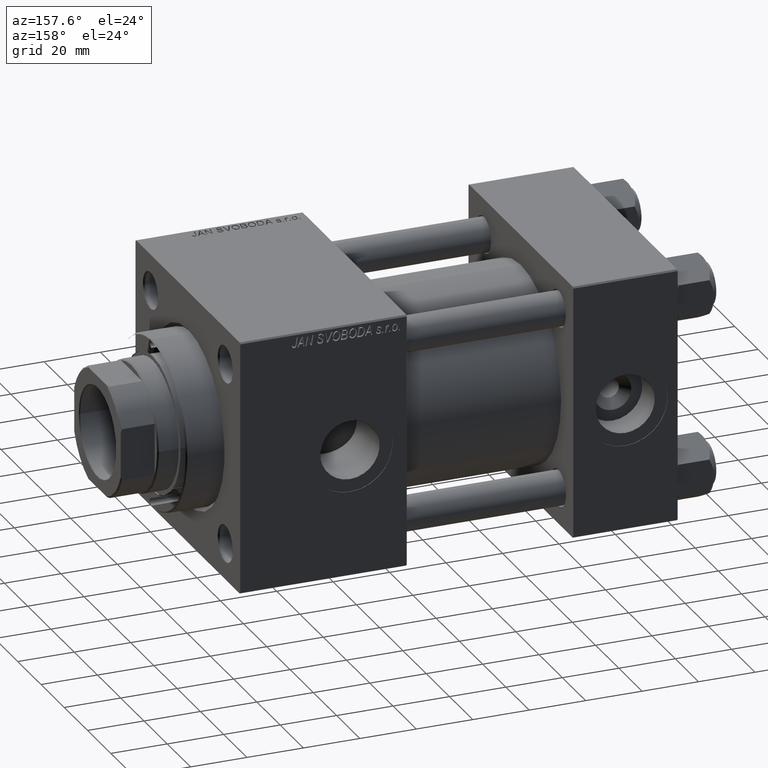
[diagram: clean part render]
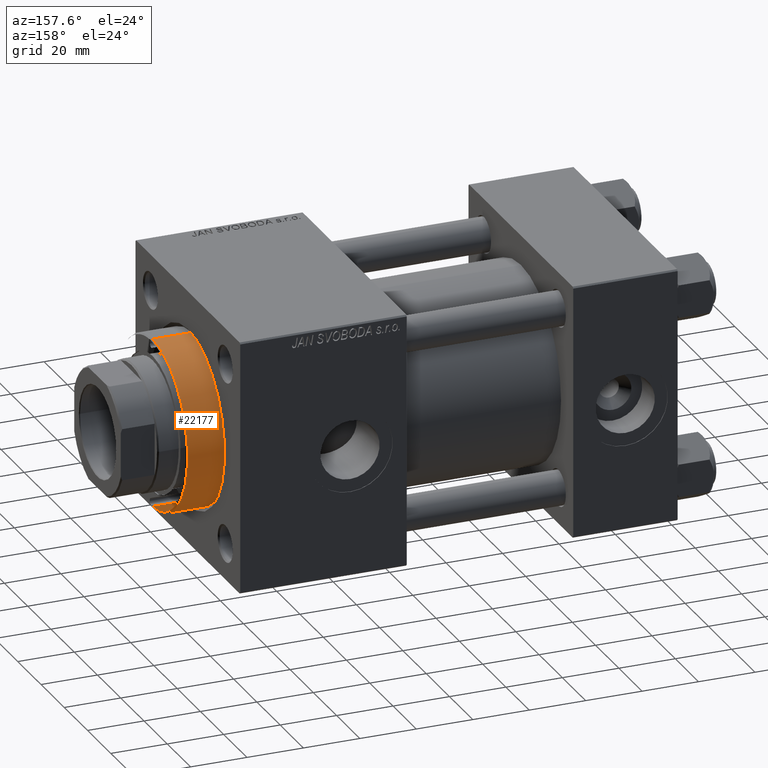
[diagram: same view with one face highlighted and labeled with its STEP entity id]
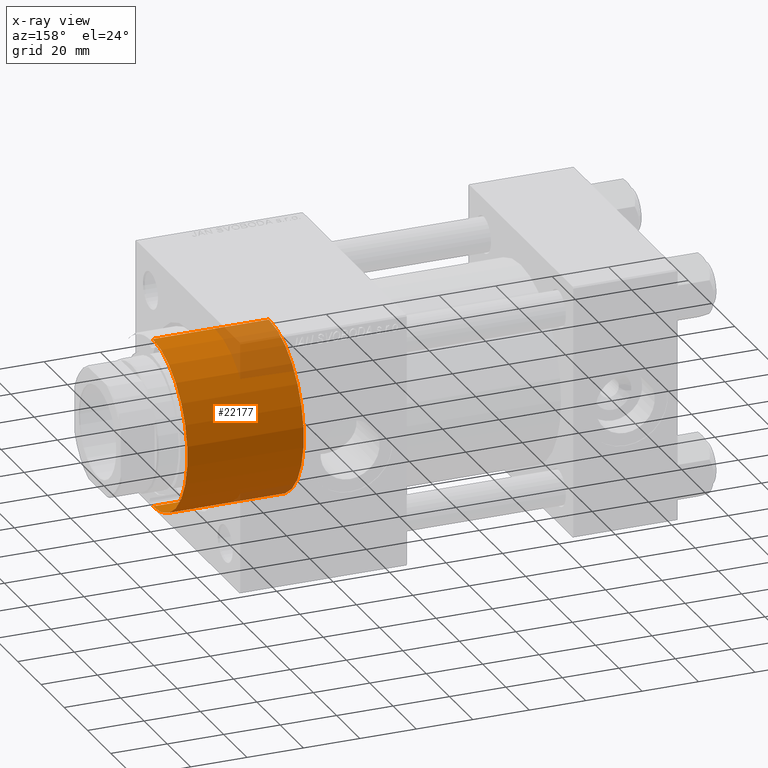
[diagram: x-ray of the same camera — body ghosted, the highlighted face saturated]
A machine part, auxiliary view. The second image highlights one B-rep face of the part: STEP entity #22177.
The next image is the same camera in x-ray: the body ghosted, the highlighted face saturated — about 16% of this face is hidden behind the body in this view.
In plain terms, the highlighted cylindrical surface (partial cylindrical patch) has radius 30 mm, axis along (-1, -0, -0).
Its self-contained STEP definition (entity closure, byte-faithful):
#1113 = CARTESIAN_POINT ( 'NONE',  ( 30.00000000000000000, 3.673940397442059178E-15, 28.69999999999999929 ) ) ;
#1824 = CARTESIAN_POINT ( 'NONE',  ( -30.00000000000000000, 0.000000000000000000, 28.69999999999999929 ) ) ;
#2357 = CYLINDRICAL_SURFACE ( 'NONE', #17026, 30.00000000000000000 ) ;
#4316 = EDGE_CURVE ( 'NONE', #29787, #22848, #47919, .T. ) ;
#5453 = AXIS2_PLACEMENT_3D ( 'NONE', #32274, #37090, #47804 ) ;
#5626 = LINE ( 'NONE', #1824, #34604 ) ;
#8222 = ORIENTED_EDGE ( 'NONE', *, *, #29975, .T. ) ;
#8706 = CARTESIAN_POINT ( 'NONE',  ( 30.00000000000000000, 3.673940397442059178E-15, 0.000000000000000000 ) ) ;
#8924 = EDGE_LOOP ( 'NONE', ( #22778, #38686, #8222, #35577 ) ) ;
#9476 = EDGE_CURVE ( 'NONE', #19022, #40380, #5626, .T. ) ;
#12520 = CARTESIAN_POINT ( 'NONE',  ( 30.00000000000000000, 3.673940397442059178E-15, 41.19999999999998153 ) ) ;
#12644 = DIRECTION ( 'NONE',  ( 1.000000000000000000, 0.000000000000000000, 0.000000000000000000 ) ) ;
#15535 = CIRCLE ( 'NONE', #38327, 30.00000000000000000 ) ;
#17026 = AXIS2_PLACEMENT_3D ( 'NONE', #24973, #32619, #18105 ) ;
#18105 = DIRECTION ( 'NONE',  ( -1.000000000000000000, 0.000000000000000000, 0.000000000000000000 ) ) ;
#19022 = VERTEX_POINT ( 'NONE', #44242 ) ;
#19275 = CIRCLE ( 'NONE', #5453, 30.00000000000000000 ) ;
#20684 = DIRECTION ( 'NONE',  ( -0.000000000000000000, -0.000000000000000000, -1.000000000000000000 ) ) ;
#21411 = FACE_OUTER_BOUND ( 'NONE', #8924, .T. ) ;
#21905 = DIRECTION ( 'NONE',  ( -0.000000000000000000, -0.000000000000000000, -1.000000000000000000 ) ) ;
#22177 = ADVANCED_FACE ( 'NONE', ( #21411 ), #2357, .T. ) ;
#22778 = ORIENTED_EDGE ( 'NONE', *, *, #43655, .T. ) ;
#22848 = VERTEX_POINT ( 'NONE', #8706 ) ;
#24351 = DIRECTION ( 'NONE',  ( 0.000000000000000000, 0.000000000000000000, 1.000000000000000000 ) ) ;
#24973 = CARTESIAN_POINT ( 'NONE',  ( 0.000000000000000000, 0.000000000000000000, 28.69999999999999929 ) ) ;
#29787 = VERTEX_POINT ( 'NONE', #12520 ) ;
#29975 = EDGE_CURVE ( 'NONE', #22848, #40380, #15535, .T. ) ;
#32274 = CARTESIAN_POINT ( 'NONE',  ( 0.000000000000000000, 0.000000000000000000, 41.19999999999998153 ) ) ;
#32619 = DIRECTION ( 'NONE',  ( -0.000000000000000000, -0.000000000000000000, -1.000000000000000000 ) ) ;
#34604 = VECTOR ( 'NONE', #21905, 1000.000000000000000 ) ;
#35577 = ORIENTED_EDGE ( 'NONE', *, *, #9476, .F. ) ;
#37090 = DIRECTION ( 'NONE',  ( 0.000000000000000000, 0.000000000000000000, -1.000000000000000000 ) ) ;
#38327 = AXIS2_PLACEMENT_3D ( 'NONE', #43702, #24351, #12644 ) ;
#38686 = ORIENTED_EDGE ( 'NONE', *, *, #4316, .T. ) ;
#40380 = VERTEX_POINT ( 'NONE', #44439 ) ;
#40913 = VECTOR ( 'NONE', #20684, 1000.000000000000000 ) ;
#43655 = EDGE_CURVE ( 'NONE', #19022, #29787, #19275, .T. ) ;
#43702 = CARTESIAN_POINT ( 'NONE',  ( 0.000000000000000000, 0.000000000000000000, 0.000000000000000000 ) ) ;
#44242 = CARTESIAN_POINT ( 'NONE',  ( -30.00000000000000000, 0.000000000000000000, 41.19999999999998153 ) ) ;
#44439 = CARTESIAN_POINT ( 'NONE',  ( -30.00000000000000000, 0.000000000000000000, 0.000000000000000000 ) ) ;
#47804 = DIRECTION ( 'NONE',  ( 1.000000000000000000, 0.000000000000000000, 0.000000000000000000 ) ) ;
#47919 = LINE ( 'NONE', #1113, #40913 ) ;